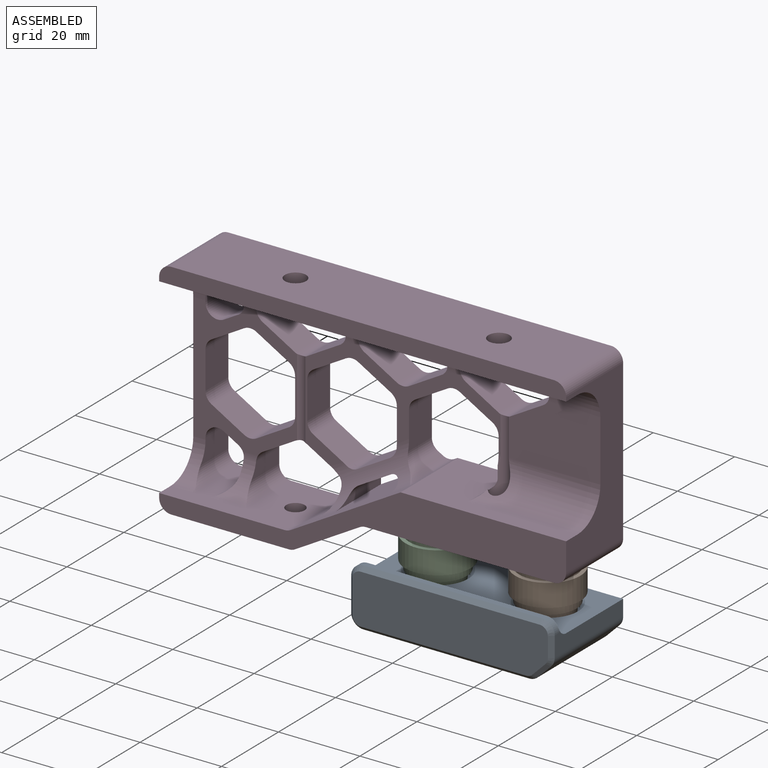
[diagram: assembled view]
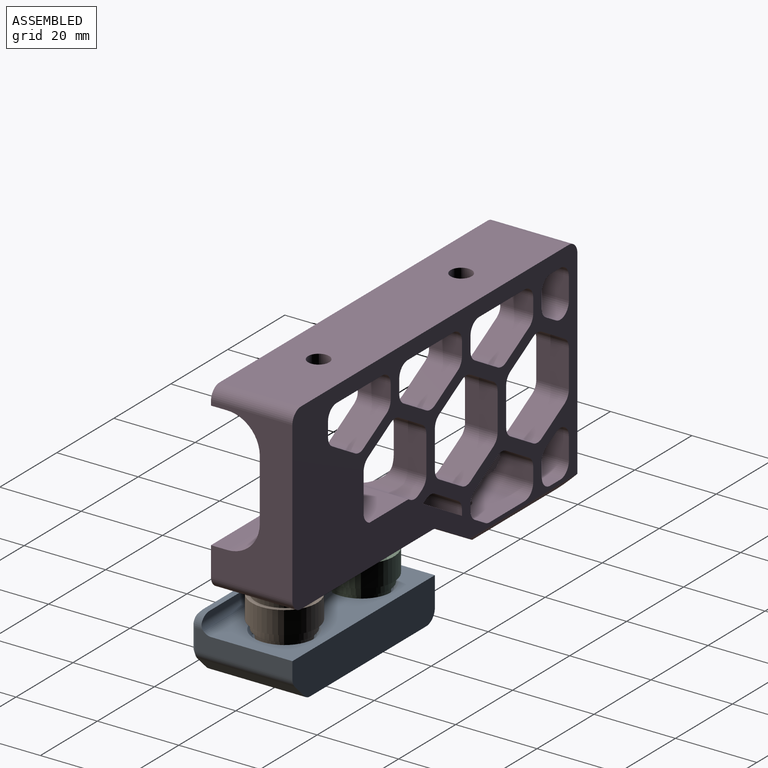
[diagram: assembled view, second angle]
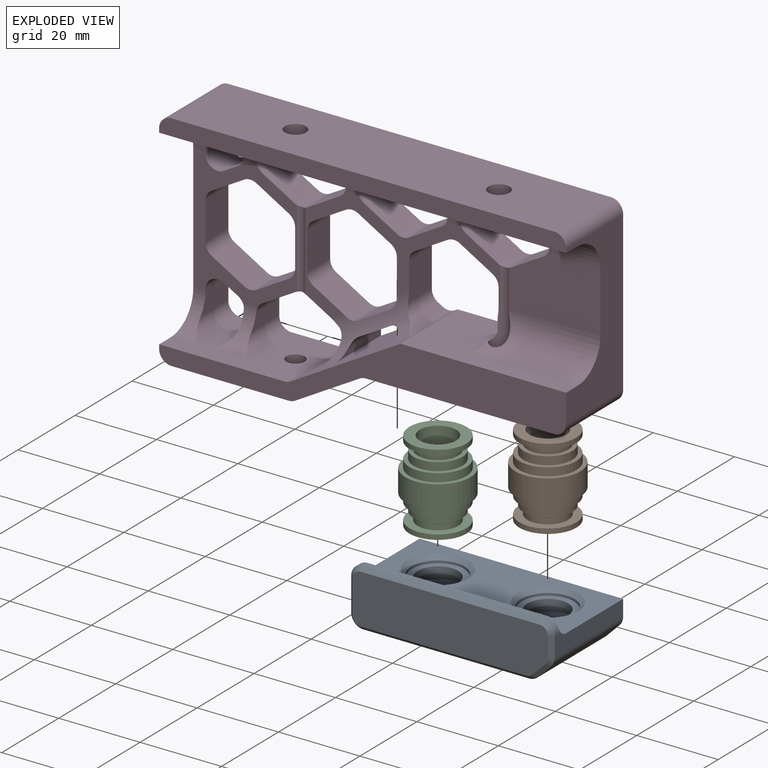
[diagram: exploded view]
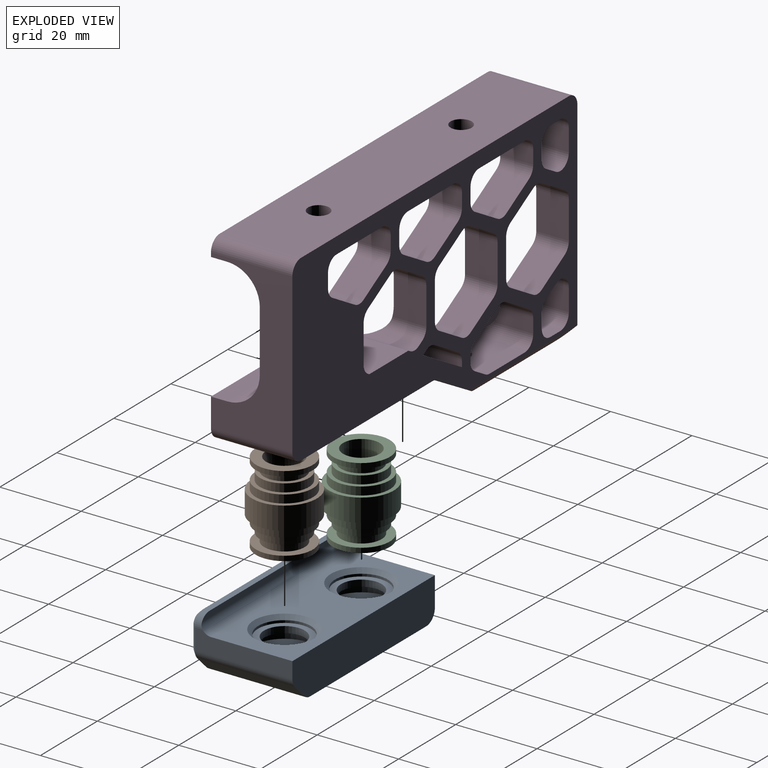
[diagram: exploded view, second angle]
ASSEMBLY  parts=4 mates=3
PART A: 39 faces, bbox 50x14.2x25 mm
  f0: plane 24x8.2mm, normal (-1,0,0), area 175.4mm2, adj f4,f5,f22,f27,f28,f29
  f1: plane 24x4.96mm, normal (1,0,0), area 97.6mm2, adj f4,f5,f22,f25,f26,f36
  f2: cylinder r=5mm len=10mm, axis (0,1,0), area 50.3mm2, adj f8,f15
  f3: cylinder r=5mm len=10mm, axis (0,1,0), area 50.3mm2, adj f10,f12
  f4: plane 50x20mm, normal (0,1,0), area 646.6mm2, adj f0,f1,f5,f17,f18,f22
  f5: plane 50x10.2mm, normal (0,0,-1), area 495.2mm2, adj f0,f1,f4,f6,f23,f24,f25,f28
  f6: plane 40.76x24mm, normal (0,-1,0), area 978.2mm2, adj f5,f24,f28,f33
  f7: cylinder r=6.5mm len=13mm, axis (0,1,0), area 24.5mm2, adj f8,f18
  f8: plane 13x13mm, normal (0,1,0), area 54.2mm2, adj f2,f7
  f9: cylinder r=6.5mm len=13mm, axis (0,1,0), area 24.5mm2, adj f10,f17
  f10: plane 13x13mm, normal (0,1,0), area 54.2mm2, adj f3,f9
  f11: cylinder r=7.75mm len=15.5mm, axis (0,1,0), area 121.7mm2, adj f12,f13
  f12: plane 15.5x15.5mm, normal (0,-1,0), area 110.2mm2, adj f3,f11
  f13: plane 15.5x15.5mm, normal (0,1,0), area 188.7mm2, adj f11
  f14: cylinder r=7.75mm len=15.5mm, axis (0,1,0), area 121.7mm2, adj f15,f16
  f15: plane 15.5x15.5mm, normal (0,-1,0), area 110.2mm2, adj f2,f14
  f16: plane 15.5x15.5mm, normal (0,1,0), area 188.7mm2, adj f14
  f17: cone r=6.5mm half-angle=45deg, axis (0,1,0), area 62.2mm2, adj f4,f9
  f18: cone r=7.5mm half-angle=45deg, axis (0,1,0), area 62.2mm2, adj f4,f7
  f19: plane 48x12.2mm, normal (0,0,1), area 573.1mm2, adj f29,f30,f31,f32,f33,f34,f35,f36
  f20: plane 44x1.5mm, normal (0,1,0), area 66mm2, adj f21,f26,f27,f32
  f21: plane 49.2x1.5mm, normal (0,0,-1), area 71.5mm2, adj f20,f22,f26,f27
  f22: cylinder r=2.5mm len=50mm, axis (-1,0,0), area 196mm2, adj f0,f1,f4,f21,f26,f27
  f23: plane 24x3.24mm, normal (0.71,-0.71,0), area 110.1mm2, adj f5,f24,f25,f37
  f24: cylinder r=3mm len=24mm, axis (0,0,1), area 56.5mm2, adj f5,f6,f23,f35
  f25: cylinder r=3mm len=24mm, axis (0,0,-1), area 56.5mm2, adj f1,f5,f23,f38
  f26: cylinder r=3mm len=3mm, axis (0,0,1), area 7.3mm2, adj f1,f20,f21,f22,f34
  f27: cylinder r=3mm len=3mm, axis (0,0,1), area 7.3mm2, adj f0,f20,f21,f22,f30
  f28: cylinder r=3mm len=24mm, axis (0,0,-1), area 113.1mm2, adj f0,f5,f6,f31
  f29: plane 8.2x1mm, normal (-0.71,0,0.71), area 11.6mm2, adj f0,f19,f30,f31
  f30: cone r=2mm half-angle=45deg, axis (0,0,-1), area 5.6mm2, adj f19,f27,f29,f32
  f31: cone r=2mm half-angle=45deg, axis (0,0,-1), area 5.6mm2, adj f19,f28,f29,f33
  f32: plane 44x1mm, normal (0,0.71,0.71), area 62.2mm2, adj f19,f20,f30,f34
  f33: plane 40.76x1mm, normal (0,-0.71,0.71), area 57.6mm2, adj f6,f19,f31,f35
  f34: cone r=2mm half-angle=45deg, axis (0,0,-1), area 5.6mm2, adj f19,f26,f32,f36
  f35: cone r=2mm half-angle=45deg, axis (0,0,-1), area 2.8mm2, adj f19,f24,f33,f37
  f36: plane 4.96x1mm, normal (0.71,0,0.71), area 7mm2, adj f1,f19,f34,f38
  f37: plane 3.95x3.95mm, normal (0.5,-0.5,0.71), area 6.5mm2, adj f19,f23,f35,f38
  f38: cone r=2mm half-angle=45deg, axis (0,0,-1), area 2.8mm2, adj f19,f25,f36,f37
PART B: 20 faces, bbox 16x16x20 mm
  f0: plane 14x14mm, normal (0,0,-1), area 75.4mm2, adj f1,f18
  f1: cylinder r=7mm len=14mm, axis (0,0,-1), area 52.8mm2, adj f0,f2
  f2: plane 14x14mm, normal (0,0,1), area 90.3mm2, adj f1,f19
  f3: plane 14x14mm, normal (0,0,-1), area 90.3mm2, adj f4,f19
  f4: cylinder r=7mm len=14mm, axis (0,0,-1), area 52.8mm2, adj f3,f5
  f5: plane 14x14mm, normal (0,0,1), area 75.4mm2, adj f4,f6
  f6: cylinder r=5mm len=10mm, axis (0,0,-1), area 62.8mm2, adj f5,f7
  f7: plane 12x12mm, normal (0,0,-1), area 34.6mm2, adj f6,f8
  f8: cylinder r=6mm len=12mm, axis (0,0,-1), area 75.4mm2, adj f7,f9
  f9: plane 14x14mm, normal (0,0,-1), area 40.8mm2, adj f8,f10
  f10: cylinder r=7mm len=14mm, axis (0,0,-1), area 88mm2, adj f9,f11
  f11: plane 16x16mm, normal (0,0,-1), area 47.1mm2, adj f10,f12
  f12: cylinder r=8mm len=16mm, axis (0,0,-1), area 281.5mm2, adj f11,f13
  f13: plane 16x16mm, normal (0,0,1), area 47.1mm2, adj f12,f14
  f14: cylinder r=7mm len=14mm, axis (0,0,-1), area 88mm2, adj f13,f15
  f15: plane 14x14mm, normal (0,0,1), area 40.8mm2, adj f14,f16
  f16: cylinder r=6mm len=12mm, axis (0,0,-1), area 75.4mm2, adj f15,f17
  f17: plane 12x12mm, normal (0,0,1), area 34.6mm2, adj f16,f18
  f18: cylinder r=5mm len=10mm, axis (0,0,-1), area 62.8mm2, adj f0,f17
  f19: cylinder r=4.5mm len=20mm, axis (0,0,1), area 565.5mm2, adj f2,f3
PART C: same geometry as B
PART D: 148 faces, bbox 100.2x55.2x20.2 mm
  f0: cylinder r=2.6mm len=5.2mm, axis (0,-1,0), area 57.2mm2, adj f18,f145
  f1: cylinder r=2.6mm len=5.2mm, axis (0,-1,0), area 57.2mm2, adj f18,f144
  f2: plane 22.47x15mm, normal (0,0,1), area 306.6mm2, adj f19,f40,f41,f45,f125,f126,f141
  f3: plane 47.94x28.58mm, normal (0,0,1), area 230.7mm2, adj f4,f7,f12,f13,f42,f46,f49,f53
  f4: cylinder r=8mm len=2.25mm, axis (-1,0,0), area 0.5mm2, adj f3,f67,f141
  f5: plane 100x52mm, normal (0,0,-1), area 2402.3mm2, adj f15,f16,f18,f19,f21,f36,f37,f38
  f6: plane 31x25.47mm, normal (0,0,1), area 269.5mm2, adj f8,f9,f10,f11,f15,f50,f55,f56
  f7: cylinder r=8mm len=26.66mm, axis (-0.87,-0.5,0), area 137.8mm2, adj f3,f38,f60,f63,f65,f68,f70,f71
  f8: cylinder r=8mm len=9mm, axis (-1,0,0), area 54.8mm2, adj f6,f39,f59,f61,f88,f90,f92,f93
  f9: cylinder r=8mm len=8mm, axis (-1,0,0), area 45.9mm2, adj f6,f15,f39,f57,f89
  f10: cylinder r=8mm len=9mm, axis (1,0,0), area 54.8mm2, adj f6,f36,f51,f54,f108,f109,f112,f113
  f11: cylinder r=8mm len=8mm, axis (1,0,0), area 45.9mm2, adj f6,f15,f36,f56,f110
  f12: cylinder r=8mm len=9mm, axis (1,0,0), area 54.8mm2, adj f3,f36,f47,f52,f114,f116,f117,f118
  f13: cylinder r=8mm len=9mm, axis (1,0,0), area 54.8mm2, adj f3,f36,f43,f48,f119,f121,f122,f123
  f14: plane 100x4mm, normal (0,0,1), area 396.1mm2, adj f15,f18,f19,f36,f137,f138
  f15: plane 49x20mm, normal (-1,0,0), area 443.5mm2, adj f5,f6,f9,f11,f14,f17,f36,f39
  f16: plane 46.2x20mm, normal (0,-1,0), area 554.6mm2, adj f5,f17,f34,f35,f134,f135,f141
  f17: plane 100x20mm, normal (0,0,1), area 682.2mm2, adj f15,f16,f19,f20,f21,f37,f38,f39
  f18: plane 94x20mm, normal (0,1,0), area 1837.5mm2, adj f0,f1,f5,f14,f137,f138
  f19: plane 39x20mm, normal (1,0,0), area 435.5mm2, adj f2,f5,f14,f17,f36,f37,f40,f41
  f20: plane 28.88x17mm, normal (0,-1,0), area 475mm2, adj f17,f136,f139,f140,f143
  f21: plane 20x15.93mm, normal (0.5,-0.87,0), area 361.1mm2, adj f5,f17,f135,f136,f140
  f22: cylinder r=6.5mm len=13mm, axis (0,-1,0), area 24.5mm2, adj f23,f35
  f23: plane 13x13mm, normal (0,-1,0), area 54.2mm2, adj f22,f26
  f24: cylinder r=6.5mm len=13mm, axis (0,-1,0), area 24.5mm2, adj f25,f34
  f25: plane 13x13mm, normal (0,-1,0), area 54.2mm2, adj f24,f27
  f26: cylinder r=5mm len=10mm, axis (0,-1,0), area 50.3mm2, adj f23,f32
  f27: cylinder r=5mm len=10mm, axis (0,-1,0), area 50.3mm2, adj f25,f29
  f28: cylinder r=7.75mm len=15.5mm, axis (0,-1,0), area 121.7mm2, adj f29,f30
  f29: plane 15.5x15.5mm, normal (0,1,0), area 110.2mm2, adj f27,f28
  f30: plane 15.5x15.5mm, normal (0,-1,0), area 188.7mm2, adj f28
  f31: cylinder r=7.75mm len=15.5mm, axis (0,-1,0), area 121.7mm2, adj f32,f33
  f32: plane 15.5x15.5mm, normal (0,1,0), area 110.2mm2, adj f26,f31
  f33: plane 15.5x15.5mm, normal (0,-1,0), area 188.7mm2, adj f31
  f34: cone r=7.5mm half-angle=45deg, axis (0,-1,0), area 62.2mm2, adj f16,f24
  f35: cone r=6.5mm half-angle=45deg, axis (0,-1,0), area 62.2mm2, adj f16,f22
  f36: plane 100x20mm, normal (0,-1,0), area 1033.9mm2, adj f5,f10,f11,f12,f13,f14,f15,f19
  f37: plane 40.68x20mm, normal (0,1,0), area 381.7mm2, adj f5,f17,f19,f38,f40,f64
  f38: plane 27.02x20mm, normal (-0.5,0.87,0), area 457.6mm2, adj f5,f7,f17,f37,f70,f71,f91,f129
  f39: plane 30.8x20mm, normal (0,1,0), area 360.2mm2, adj f5,f8,f9,f15,f17,f89,f90,f92
  f40: cylinder r=8mm len=26.99mm, axis (-1,0,0), area 293.1mm2, adj f2,f19,f37,f64,f128,f141
  f41: cylinder r=8mm len=15.5mm, axis (1,0,0), area 165.6mm2, adj f2,f19,f36,f44,f124,f126
  f42: plane 8x8mm, normal (0.5,0.87,0), area 73.9mm2, adj f3,f5,f122,f125
  f43: plane 9.76x3.47mm, normal (1,0,0), area 30.5mm2, adj f5,f13,f122,f123
  f44: plane 9.76x3.47mm, normal (-1,0,0), area 30.5mm2, adj f5,f41,f124,f126
  f45: plane 8x8mm, normal (-0.5,0.87,0), area 73.9mm2, adj f2,f5,f125,f126
  f46: plane 8x8mm, normal (0.5,0.87,0), area 73.9mm2, adj f3,f5,f117,f120
  f47: plane 9.76x3.47mm, normal (1,0,0), area 30.5mm2, adj f5,f12,f117,f118
  f48: plane 9.76x3.47mm, normal (-1,0,0), area 30.5mm2, adj f5,f13,f119,f121
  f49: plane 8x8mm, normal (-0.5,0.87,0), area 73.9mm2, adj f3,f5,f120,f121
  f50: plane 8x8mm, normal (0.5,0.87,0), area 73.9mm2, adj f5,f6,f112,f115
  f51: plane 9.76x3.47mm, normal (1,0,0), area 30.5mm2, adj f5,f10,f112,f113
  f52: plane 9.76x3.47mm, normal (-1,0,0), area 30.5mm2, adj f5,f12,f114,f116
  f53: plane 8x8mm, normal (-0.5,0.87,0), area 73.9mm2, adj f3,f5,f115,f116
  f54: plane 9.76x3.47mm, normal (-1,0,0), area 30.5mm2, adj f5,f10,f108,f109
  f55: plane 8x3.5mm, normal (-0.5,0.87,0), area 32.3mm2, adj f5,f6,f109,f111
  f56: plane 9.76x5.49mm, normal (1,0,0), area 46.7mm2, adj f5,f6,f11,f110,f111
  f57: plane 9.76x5.49mm, normal (1,0,0), area 46.7mm2, adj f5,f6,f9,f87,f89
  f58: plane 8x3.5mm, normal (-0.5,-0.87,0), area 32.3mm2, adj f5,f6,f87,f88
  f59: plane 9.76x3.47mm, normal (-1,0,0), area 30.5mm2, adj f5,f8,f88,f90
  f60: plane 11.38x1.37mm, normal (-1,0,0), area 14.2mm2, adj f5,f7,f91,f94
  f61: plane 9.76x3.47mm, normal (1,0,0), area 30.5mm2, adj f5,f8,f92,f93
  f62: plane 8x8mm, normal (0.5,-0.87,0), area 73.9mm2, adj f5,f6,f93,f95
  f63: plane 8.37x8.02mm, normal (-0.5,-0.87,0), area 74.2mm2, adj f3,f5,f7,f94,f95
  f64: plane 16x0.49mm, normal (-0.5,0.87,0), area 8.3mm2, adj f5,f37,f40,f128
  f65: plane 11.38x1.2mm, normal (0.5,0.87,0), area 14.2mm2, adj f5,f7,f129,f130
  f66: plane 8x8mm, normal (-0.5,-0.87,0), area 73.9mm2, adj f3,f5,f127,f131
  f67: plane 9.24x8.32mm, normal (-1,0,0), area 75.1mm2, adj f3,f4,f5,f127,f128,f141
  f68: plane 9.25x8.37mm, normal (1,0,0), area 74.2mm2, adj f3,f5,f7,f130,f132
  f69: plane 8x8mm, normal (0.5,-0.87,0), area 73.9mm2, adj f3,f5,f131,f132
  f70: plane 16x1.16mm, normal (-0.5,-0.87,0), area 17.6mm2, adj f5,f7,f38,f85
  f71: plane 16x1.33mm, normal (1,0,0), area 17.6mm2, adj f5,f7,f38,f86
  f72: plane 10.05x8mm, normal (0.5,-0.87,0), area 92.8mm2, adj f5,f7,f85,f86
  f73: plane 8.35x8mm, normal (-0.5,0.87,0), area 77.1mm2, adj f5,f7,f98,f99
  f74: plane 8x8mm, normal (0.5,-0.87,0), area 73.9mm2, adj f3,f5,f96,f100
  f75: plane 8x8mm, normal (-0.5,-0.87,0), area 73.9mm2, adj f3,f5,f96,f97
  f76: plane 9.24x8.05mm, normal (-1,0,0), area 73.9mm2, adj f3,f5,f7,f97,f98
  f77: plane 8.05x8mm, normal (0.5,0.87,0), area 73.9mm2, adj f3,f5,f7,f99,f101
  f78: plane 9.24x8mm, normal (1,0,0), area 73.9mm2, adj f3,f5,f100,f101
  f79: plane 8x8mm, normal (-0.5,0.87,0), area 73.9mm2, adj f5,f6,f102,f106
  f80: plane 8x8mm, normal (0.5,0.87,0), area 73.9mm2, adj f5,f6,f102,f103
  f81: plane 9.24x8mm, normal (1,0,0), area 73.9mm2, adj f5,f6,f103,f104
  f82: plane 8x8mm, normal (0.5,-0.87,0), area 73.9mm2, adj f5,f6,f104,f105
  f83: plane 8x8mm, normal (-0.5,-0.87,0), area 73.9mm2, adj f5,f6,f105,f107
  f84: plane 9.24x8mm, normal (-1,0,0), area 73.9mm2, adj f5,f6,f106,f107
  f85: cylinder r=3mm len=11.86mm, axis (0,0,-1), area 33.3mm2, adj f5,f7,f70,f72
  f86: cylinder r=3mm len=11.86mm, axis (0,0,-1), area 33.3mm2, adj f5,f7,f71,f72
  f87: cylinder r=3mm len=8mm, axis (0,0,-1), area 50.3mm2, adj f5,f6,f57,f58
  f88: cylinder r=3mm len=8.15mm, axis (0,0,-1), area 25.3mm2, adj f5,f6,f8,f58,f59
  f89: cylinder r=3mm len=16mm, axis (0,0,1), area 59.1mm2, adj f5,f9,f39,f57
  f90: cylinder r=3mm len=16mm, axis (0,0,1), area 59.1mm2, adj f5,f8,f39,f59
  f91: cylinder r=3mm len=16mm, axis (0,0,1), area 42.9mm2, adj f5,f7,f38,f60
  f92: cylinder r=3mm len=16mm, axis (0,0,1), area 59.1mm2, adj f5,f8,f39,f61
  f93: cylinder r=3mm len=8.15mm, axis (0,0,-1), area 25.3mm2, adj f5,f6,f8,f61,f62
  f94: cylinder r=3mm len=10.05mm, axis (0,0,-1), area 28.5mm2, adj f5,f7,f60,f63
  f95: cylinder r=3mm len=8mm, axis (0,0,-1), area 24.8mm2, adj f3,f5,f6,f62,f63,f142
  f96: cylinder r=3mm len=8mm, axis (0,0,-1), area 25.1mm2, adj f3,f5,f74,f75
  f97: cylinder r=3mm len=8mm, axis (0,0,-1), area 25.1mm2, adj f3,f5,f75,f76
  f98: cylinder r=3mm len=8.35mm, axis (0,0,-1), area 25.8mm2, adj f5,f7,f73,f76
  f99: cylinder r=3mm len=8.35mm, axis (0,0,-1), area 25.8mm2, adj f5,f7,f73,f77
  f100: cylinder r=3mm len=8mm, axis (0,0,-1), area 25.1mm2, adj f3,f5,f74,f78
  f101: cylinder r=3mm len=8mm, axis (0,0,-1), area 25.1mm2, adj f3,f5,f77,f78
  f102: cylinder r=3mm len=8mm, axis (0,0,-1), area 25.1mm2, adj f5,f6,f79,f80
  f103: cylinder r=3mm len=8mm, axis (0,0,-1), area 25.1mm2, adj f5,f6,f80,f81
  f104: cylinder r=3mm len=8mm, axis (0,0,-1), area 25.1mm2, adj f5,f6,f81,f82
  f105: cylinder r=3mm len=8mm, axis (0,0,-1), area 25.1mm2, adj f5,f6,f82,f83
  f106: cylinder r=3mm len=8mm, axis (0,0,-1), area 25.1mm2, adj f5,f6,f79,f84
  f107: cylinder r=3mm len=8mm, axis (0,0,-1), area 25.1mm2, adj f5,f6,f83,f84
  f108: cylinder r=3mm len=16mm, axis (0,0,1), area 59.1mm2, adj f5,f10,f36,f54
  f109: cylinder r=3mm len=8.15mm, axis (0,0,-1), area 25.3mm2, adj f5,f6,f10,f54,f55
  f110: cylinder r=3mm len=16mm, axis (0,0,1), area 59.1mm2, adj f5,f11,f36,f56
  f111: cylinder r=3mm len=8mm, axis (0,0,-1), area 50.3mm2, adj f5,f6,f55,f56
  f112: cylinder r=3mm len=8.15mm, axis (0,0,-1), area 25.3mm2, adj f5,f6,f10,f50,f51
  f113: cylinder r=3mm len=16mm, axis (0,0,1), area 59.1mm2, adj f5,f10,f36,f51
  f114: cylinder r=3mm len=16mm, axis (0,0,1), area 59.1mm2, adj f5,f12,f36,f52
  f115: cylinder r=3mm len=8mm, axis (0,0,-1), area 24.8mm2, adj f3,f5,f6,f50,f53,f142
  f116: cylinder r=3mm len=8.15mm, axis (0,0,-1), area 25.3mm2, adj f3,f5,f12,f52,f53
  f117: cylinder r=3mm len=8.15mm, axis (0,0,-1), area 25.3mm2, adj f3,f5,f12,f46,f47
  f118: cylinder r=3mm len=16mm, axis (0,0,1), area 59.1mm2, adj f5,f12,f36,f47
  f119: cylinder r=3mm len=16mm, axis (0,0,1), area 59.1mm2, adj f5,f13,f36,f48
  f120: cylinder r=3mm len=8mm, axis (0,0,-1), area 25.1mm2, adj f3,f5,f46,f49
  f121: cylinder r=3mm len=8.15mm, axis (0,0,-1), area 25.3mm2, adj f3,f5,f13,f48,f49
  f122: cylinder r=3mm len=8.15mm, axis (0,0,-1), area 25.3mm2, adj f3,f5,f13,f42,f43
  f123: cylinder r=3mm len=16mm, axis (0,0,1), area 59.1mm2, adj f5,f13,f36,f43
  f124: cylinder r=3mm len=16mm, axis (0,0,1), area 59.1mm2, adj f5,f36,f41,f44
  f125: cylinder r=3mm len=8mm, axis (0,0,-1), area 24.8mm2, adj f2,f3,f5,f42,f45,f141
  f126: cylinder r=3mm len=8.15mm, axis (0,0,-1), area 25.3mm2, adj f2,f5,f41,f44,f45
  f127: cylinder r=3mm len=8mm, axis (0,0,-1), area 25.1mm2, adj f3,f5,f66,f67
  f128: cylinder r=3mm len=13.89mm, axis (0,0,-1), area 32.3mm2, adj f5,f40,f64,f67,f141
  f129: cylinder r=3mm len=16mm, axis (0,0,-1), area 42.9mm2, adj f5,f7,f38,f65
  f130: cylinder r=3mm len=10.05mm, axis (0,0,-1), area 28.5mm2, adj f5,f7,f65,f68
  f131: cylinder r=3mm len=8mm, axis (0,0,-1), area 25.1mm2, adj f3,f5,f66,f69
  f132: cylinder r=3mm len=8mm, axis (0,0,-1), area 25.1mm2, adj f3,f5,f68,f69
  f133: cylinder r=3mm len=20mm, axis (0,0,-1), area 31.4mm2, adj f5,f17,f38,f39
  f134: cylinder r=3mm len=20mm, axis (0,0,-1), area 94.2mm2, adj f5,f16,f17,f19
  f135: cylinder r=3mm len=20mm, axis (0,0,-1), area 31.4mm2, adj f5,f16,f17,f21
  f136: cylinder r=3mm len=17.4mm, axis (0,0,1), area 27mm2, adj f17,f20,f21,f140
  f137: cylinder r=3mm len=20mm, axis (0,0,1), area 94.2mm2, adj f5,f14,f15,f18
  f138: cylinder r=3mm len=20mm, axis (0,0,-1), area 94.2mm2, adj f5,f14,f18,f19
  f139: cylinder r=3mm len=20mm, axis (0,0,-1), area 85.2mm2, adj f15,f17,f20,f140
  f140: plane 38.07x3.2mm, normal (0,-0.71,-0.71), area 146.9mm2, adj f5,f20,f21,f136,f139
  f141: cylinder r=2.25mm len=27.1mm, axis (0,-1,0), area 204.5mm2, adj f2,f3,f4,f16,f40,f67,f125,f128
  f142: cylinder r=2.25mm len=19.19mm, axis (0,-1,0), area 40.6mm2, adj f3,f6,f95,f115
  f143: cylinder r=2.25mm len=4.5mm, axis (0,-1,0), area 56.5mm2, adj f20,f39
  f144: plane 10x10mm, normal (0,-1,0), area 57.3mm2, adj f1,f147
  f145: plane 10x10mm, normal (0,-1,0), area 57.3mm2, adj f0,f146
  f146: cone r=5mm half-angle=45deg, axis (0,-1,0), area 23.3mm2, adj f36,f145
  f147: cone r=5mm half-angle=45deg, axis (0,-1,0), area 23.3mm2, adj f36,f144
PLACE A rot(axis=(1,0,0),90deg) t=(5.25,10.58,-4.07)mm
PLACE B rot(axis=(0.73,0.12,-0.67),0deg) t=(43.75,0.58,-26.37)mm
PLACE C rot(axis=(0.61,0.71,-0.34),0deg) t=(16.75,0.58,-26.37)mm
PLACE D rot(axis=(1,0,0),90deg) t=(5.25,10.58,6.33)mm
MATE fastened C.f1 <-> A.f3  axis (0,0,-1) through (16.75,0.58,-23.17)mm
MATE fastened B.f1 <-> D.f35  axis (0,0,1) through (43.75,0.58,-9.57)mm
MATE fastened B.f1 <-> A.f7  axis (0,0,-1) through (43.75,0.58,-23.17)mm
